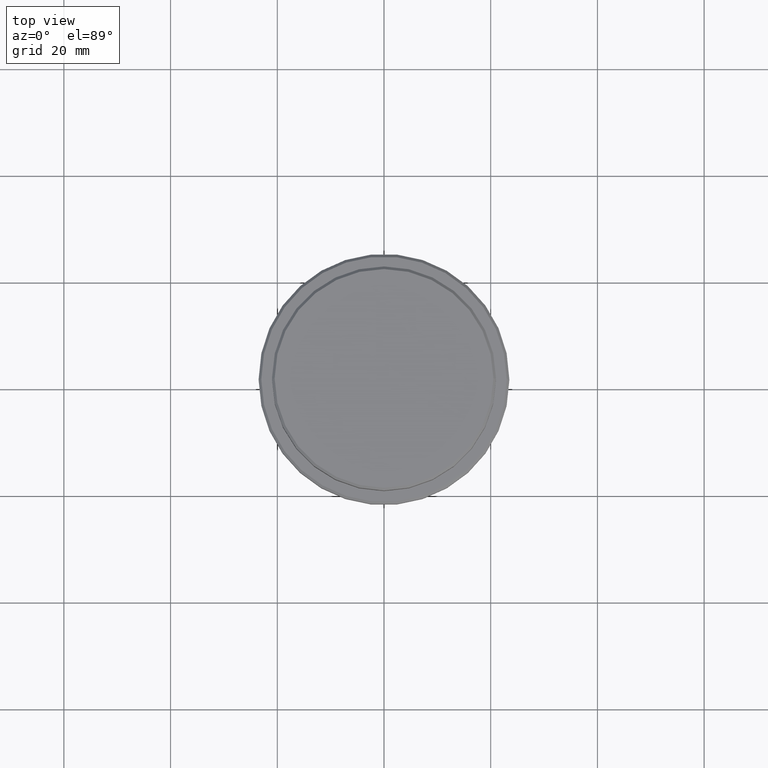
[diagram: clean part render]
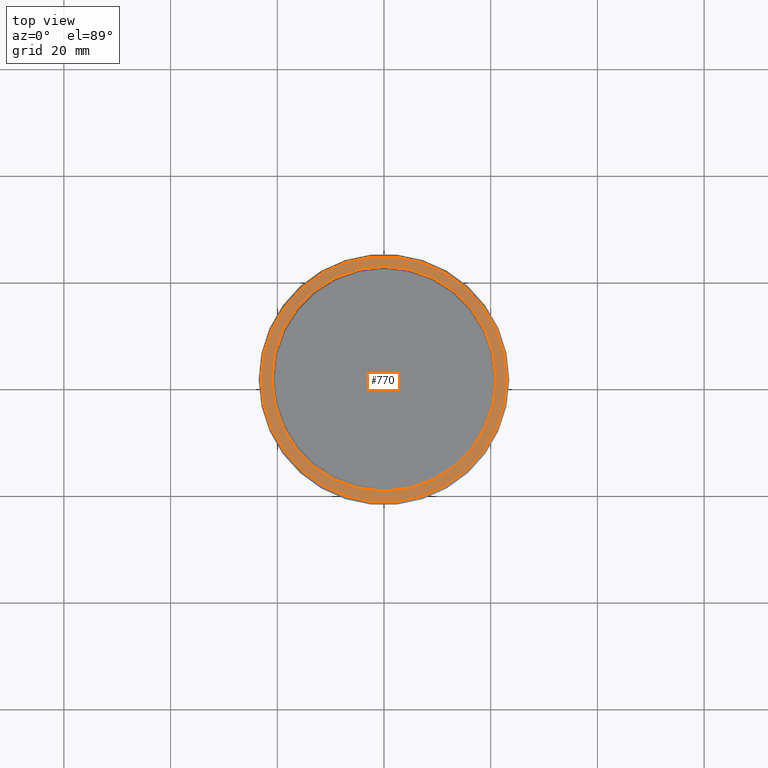
[diagram: same view with one face highlighted and labeled with its STEP entity id]
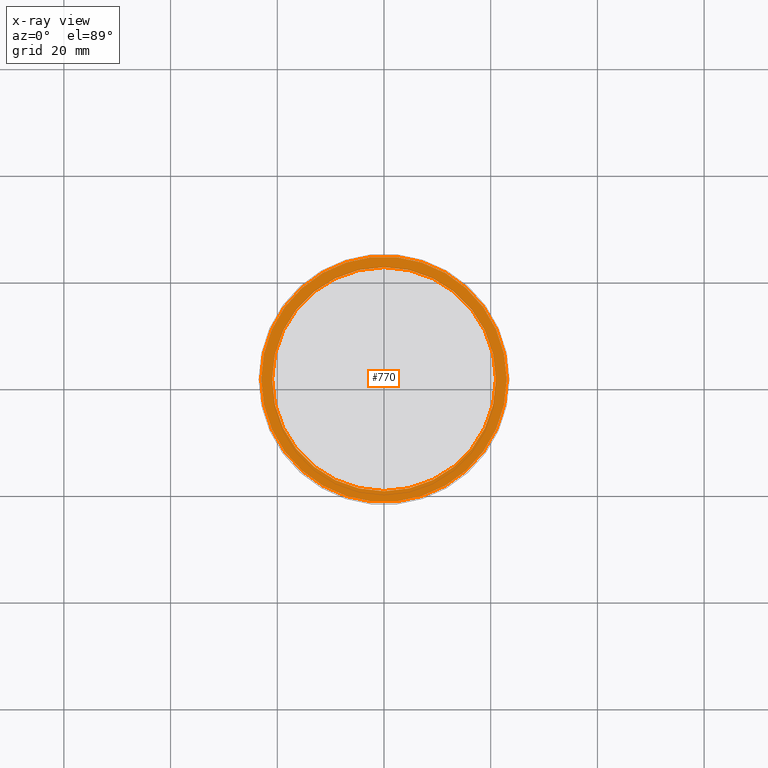
[diagram: x-ray of the same camera — body ghosted, the highlighted face saturated]
A machine part, top view. The second image highlights one B-rep face of the part: STEP entity #770.
The next image is the same camera in x-ray: the body ghosted, the highlighted face saturated — about 0% of this face is hidden behind the body in this view.
In plain terms, the highlighted planar face has unit normal (0, -0, 1).
Its self-contained STEP definition (entity closure, byte-faithful):
#8 = DIRECTION ( 'NONE',  ( 1.000000000000000000, 0.000000000000000000, 0.000000000000000000 ) ) ;
#41 = EDGE_CURVE ( 'NONE', #899, #1264, #1234, .T. ) ;
#65 = CARTESIAN_POINT ( 'NONE',  ( 0.000000000000000000, 0.000000000000000000, -9.000000000000000000 ) ) ;
#112 = VERTEX_POINT ( 'NONE', #1150 ) ;
#170 = CARTESIAN_POINT ( 'NONE',  ( 20.99999999999999289, 0.000000000000000000, -9.000000000000000000 ) ) ;
#196 = AXIS2_PLACEMENT_3D ( 'NONE', #1335, #1132, #1365 ) ;
#255 = DIRECTION ( 'NONE',  ( 1.000000000000000000, 0.000000000000000000, 0.000000000000000000 ) ) ;
#279 = DIRECTION ( 'NONE',  ( 1.000000000000000000, 0.000000000000000000, 0.000000000000000000 ) ) ;
#299 = FACE_OUTER_BOUND ( 'NONE', #507, .T. ) ;
#316 = CARTESIAN_POINT ( 'NONE',  ( 22.99999999999998224, 2.847303808017595350E-15, -9.000000000000000000 ) ) ;
#367 = DIRECTION ( 'NONE',  ( 1.000000000000000000, 0.000000000000000000, 0.000000000000000000 ) ) ;
#421 = CARTESIAN_POINT ( 'NONE',  ( 0.000000000000000000, 0.000000000000000000, -9.000000000000000000 ) ) ;
#422 = CIRCLE ( 'NONE', #1231, 20.99999999999999289 ) ;
#433 = DIRECTION ( 'NONE',  ( -0.000000000000000000, -0.000000000000000000, 1.000000000000000000 ) ) ;
#507 = EDGE_LOOP ( 'NONE', ( #1193, #801 ) ) ;
#509 = EDGE_CURVE ( 'NONE', #960, #112, #422, .T. ) ;
#545 = ORIENTED_EDGE ( 'NONE', *, *, #952, .T. ) ;
#582 = AXIS2_PLACEMENT_3D ( 'NONE', #1260, #831, #279 ) ;
#600 = PLANE ( 'NONE',  #582 ) ;
#605 = CIRCLE ( 'NONE', #196, 20.99999999999999289 ) ;
#725 = AXIS2_PLACEMENT_3D ( 'NONE', #421, #433, #8 ) ;
#742 = FACE_BOUND ( 'NONE', #830, .T. ) ;
#770 = ADVANCED_FACE ( 'NONE', ( #299, #742 ), #600, .T. ) ;
#793 = CIRCLE ( 'NONE', #725, 22.99999999999998224 ) ;
#801 = ORIENTED_EDGE ( 'NONE', *, *, #829, .T. ) ;
#813 = DIRECTION ( 'NONE',  ( 0.000000000000000000, 0.000000000000000000, -1.000000000000000000 ) ) ;
#829 = EDGE_CURVE ( 'NONE', #1264, #899, #793, .T. ) ;
#830 = EDGE_LOOP ( 'NONE', ( #1116, #545 ) ) ;
#831 = DIRECTION ( 'NONE',  ( 0.000000000000000000, -0.000000000000000000, 1.000000000000000000 ) ) ;
#899 = VERTEX_POINT ( 'NONE', #1241 ) ;
#952 = EDGE_CURVE ( 'NONE', #112, #960, #605, .T. ) ;
#960 = VERTEX_POINT ( 'NONE', #170 ) ;
#1027 = AXIS2_PLACEMENT_3D ( 'NONE', #65, #1240, #255 ) ;
#1116 = ORIENTED_EDGE ( 'NONE', *, *, #509, .T. ) ;
#1132 = DIRECTION ( 'NONE',  ( 0.000000000000000000, 0.000000000000000000, -1.000000000000000000 ) ) ;
#1150 = CARTESIAN_POINT ( 'NONE',  ( -20.99999999999999289, 2.571758278209440872E-15, -9.000000000000000000 ) ) ;
#1175 = CARTESIAN_POINT ( 'NONE',  ( 0.000000000000000000, 0.000000000000000000, -9.000000000000000000 ) ) ;
#1193 = ORIENTED_EDGE ( 'NONE', *, *, #41, .T. ) ;
#1231 = AXIS2_PLACEMENT_3D ( 'NONE', #1175, #813, #367 ) ;
#1234 = CIRCLE ( 'NONE', #1027, 22.99999999999998224 ) ;
#1240 = DIRECTION ( 'NONE',  ( -0.000000000000000000, -0.000000000000000000, 1.000000000000000000 ) ) ;
#1241 = CARTESIAN_POINT ( 'NONE',  ( -22.99999999999998224, 0.000000000000000000, -9.000000000000000000 ) ) ;
#1260 = CARTESIAN_POINT ( 'NONE',  ( 0.000000000000000000, 20.49999999999999645, -9.000000000000000000 ) ) ;
#1264 = VERTEX_POINT ( 'NONE', #316 ) ;
#1335 = CARTESIAN_POINT ( 'NONE',  ( 0.000000000000000000, 0.000000000000000000, -9.000000000000000000 ) ) ;
#1365 = DIRECTION ( 'NONE',  ( 1.000000000000000000, 0.000000000000000000, 0.000000000000000000 ) ) ;